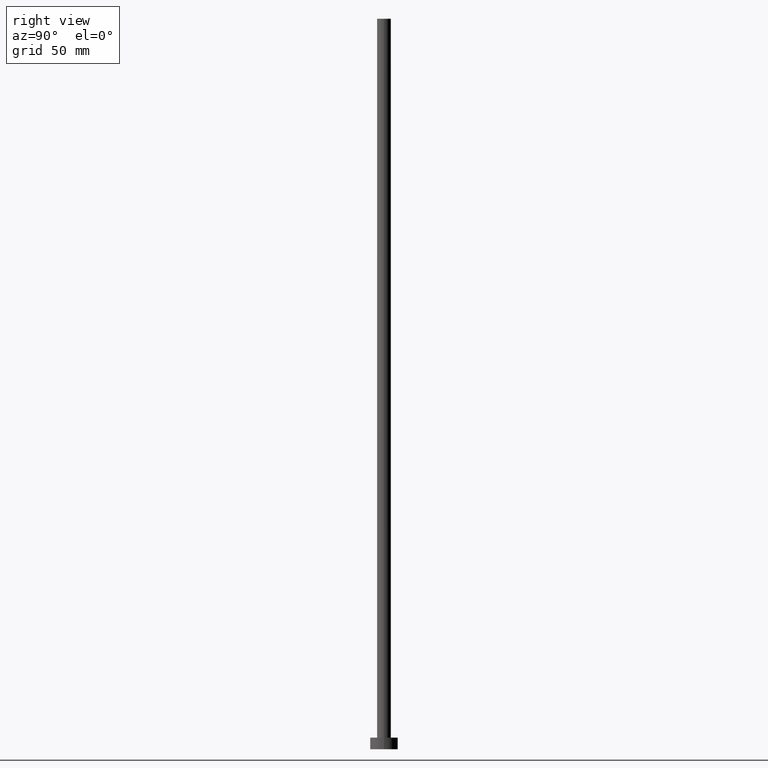
[diagram: clean part render]
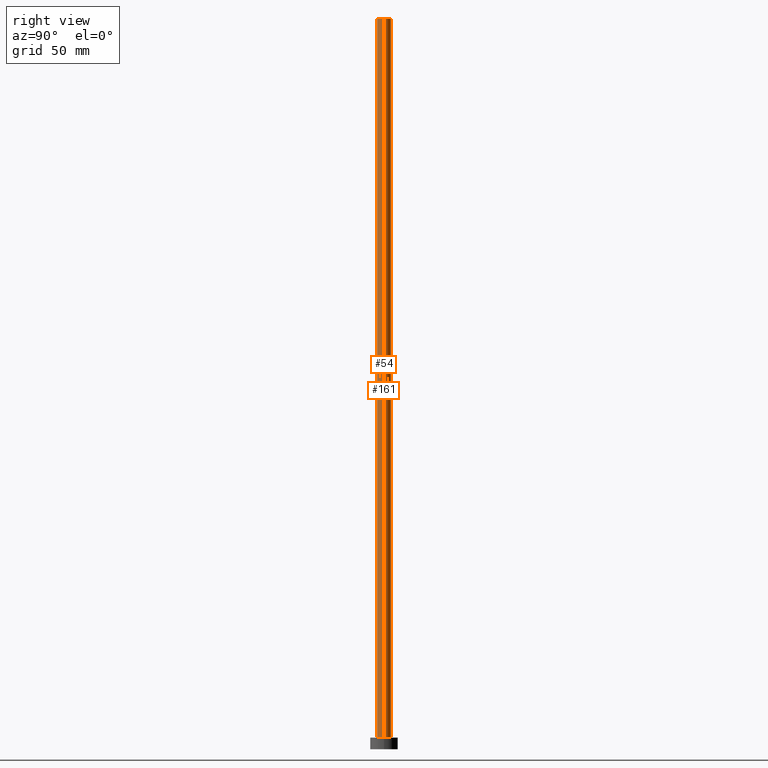
[diagram: same view with one multi-face feature highlighted, each face labeled with its STEP entity id]
A machine part, right view. The highlighted faces form ONE feature: a constant-radius fillet chain: 2 tangent blend faces with common blend radius 3 mm. The faces share edges in the B-rep.
Their STEP definitions:
[1] entity #161 (Cylinder):
#8 = CIRCLE ( 'NONE', #176, 3.000000000000000444 ) ;
#23 = DIRECTION ( 'NONE',  ( 1.000000000000000000, 0.000000000000000000, 0.000000000000000000 ) ) ;
#26 = EDGE_CURVE ( 'NONE', #210, #33, #8, .T. ) ;
#29 = CARTESIAN_POINT ( 'NONE',  ( 3.000000000000000444, 3.673940397442060361E-16, 315.0000000000000000 ) ) ;
#33 = VERTEX_POINT ( 'NONE', #233 ) ;
#43 = CIRCLE ( 'NONE', #131, 3.000000000000000444 ) ;
#48 = VECTOR ( 'NONE', #57, 1000.000000000000000 ) ;
#51 = EDGE_LOOP ( 'NONE', ( #65, #189, #110, #148 ) ) ;
#57 = DIRECTION ( 'NONE',  ( -0.000000000000000000, -0.000000000000000000, -1.000000000000000000 ) ) ;
#65 = ORIENTED_EDGE ( 'NONE', *, *, #154, .F. ) ;
#85 = DIRECTION ( 'NONE',  ( 0.000000000000000000, 0.000000000000000000, 1.000000000000000000 ) ) ;
#95 = CARTESIAN_POINT ( 'NONE',  ( 0.000000000000000000, 0.000000000000000000, 315.0000000000000000 ) ) ;
#96 = CYLINDRICAL_SURFACE ( 'NONE', #104, 3.000000000000000444 ) ;
#97 = DIRECTION ( 'NONE',  ( -0.000000000000000000, -0.000000000000000000, -1.000000000000000000 ) ) ;
#104 = AXIS2_PLACEMENT_3D ( 'NONE', #177, #135, #136 ) ;
#106 = VERTEX_POINT ( 'NONE', #29 ) ;
#110 = ORIENTED_EDGE ( 'NONE', *, *, #26, .T. ) ;
#124 = EDGE_CURVE ( 'NONE', #164, #33, #158, .T. ) ;
#131 = AXIS2_PLACEMENT_3D ( 'NONE', #95, #197, #23 ) ;
#135 = DIRECTION ( 'NONE',  ( -0.000000000000000000, -0.000000000000000000, -1.000000000000000000 ) ) ;
#136 = DIRECTION ( 'NONE',  ( -1.000000000000000000, 0.000000000000000000, 0.000000000000000000 ) ) ;
#148 = ORIENTED_EDGE ( 'NONE', *, *, #124, .F. ) ;
#154 = EDGE_CURVE ( 'NONE', #106, #164, #43, .T. ) ;
#157 = LINE ( 'NONE', #236, #193 ) ;
#158 = LINE ( 'NONE', #234, #48 ) ;
#161 = ADVANCED_FACE ( 'NONE', ( #194 ), #96, .T. ) ;
#164 = VERTEX_POINT ( 'NONE', #218 ) ;
#176 = AXIS2_PLACEMENT_3D ( 'NONE', #209, #85, #191 ) ;
#177 = CARTESIAN_POINT ( 'NONE',  ( 0.000000000000000000, 0.000000000000000000, 315.0000000000000000 ) ) ;
#189 = ORIENTED_EDGE ( 'NONE', *, *, #238, .T. ) ;
#191 = DIRECTION ( 'NONE',  ( 1.000000000000000000, 0.000000000000000000, 0.000000000000000000 ) ) ;
#193 = VECTOR ( 'NONE', #97, 1000.000000000000000 ) ;
#194 = FACE_OUTER_BOUND ( 'NONE', #51, .T. ) ;
#195 = CARTESIAN_POINT ( 'NONE',  ( 3.000000000000000444, 3.673940397442060361E-16, 5.000000000000000000 ) ) ;
#197 = DIRECTION ( 'NONE',  ( 0.000000000000000000, 0.000000000000000000, 1.000000000000000000 ) ) ;
#209 = CARTESIAN_POINT ( 'NONE',  ( 0.000000000000000000, 0.000000000000000000, 5.000000000000000000 ) ) ;
#210 = VERTEX_POINT ( 'NONE', #195 ) ;
#218 = CARTESIAN_POINT ( 'NONE',  ( -3.000000000000000444, 0.000000000000000000, 315.0000000000000000 ) ) ;
#233 = CARTESIAN_POINT ( 'NONE',  ( -3.000000000000000444, 0.000000000000000000, 5.000000000000000000 ) ) ;
#234 = CARTESIAN_POINT ( 'NONE',  ( -3.000000000000000444, 0.000000000000000000, 315.0000000000000000 ) ) ;
#236 = CARTESIAN_POINT ( 'NONE',  ( 3.000000000000000444, 3.673940397442060361E-16, 315.0000000000000000 ) ) ;
#238 = EDGE_CURVE ( 'NONE', #106, #210, #157, .T. ) ;
[2] entity #54 (Cylinder):
#4 = DIRECTION ( 'NONE',  ( 0.000000000000000000, 0.000000000000000000, 1.000000000000000000 ) ) ;
#9 = AXIS2_PLACEMENT_3D ( 'NONE', #21, #4, #111 ) ;
#13 = ORIENTED_EDGE ( 'NONE', *, *, #124, .T. ) ;
#17 = ORIENTED_EDGE ( 'NONE', *, *, #238, .F. ) ;
#21 = CARTESIAN_POINT ( 'NONE',  ( 0.000000000000000000, 0.000000000000000000, 5.000000000000000000 ) ) ;
#29 = CARTESIAN_POINT ( 'NONE',  ( 3.000000000000000444, 3.673940397442060361E-16, 315.0000000000000000 ) ) ;
#33 = VERTEX_POINT ( 'NONE', #233 ) ;
#36 = DIRECTION ( 'NONE',  ( 1.000000000000000000, 0.000000000000000000, 0.000000000000000000 ) ) ;
#48 = VECTOR ( 'NONE', #57, 1000.000000000000000 ) ;
#54 = ADVANCED_FACE ( 'NONE', ( #165 ), #248, .T. ) ;
#57 = DIRECTION ( 'NONE',  ( -0.000000000000000000, -0.000000000000000000, -1.000000000000000000 ) ) ;
#71 = EDGE_LOOP ( 'NONE', ( #17, #86, #13, #147 ) ) ;
#72 = DIRECTION ( 'NONE',  ( -1.000000000000000000, 0.000000000000000000, 0.000000000000000000 ) ) ;
#75 = CARTESIAN_POINT ( 'NONE',  ( 0.000000000000000000, 0.000000000000000000, 315.0000000000000000 ) ) ;
#86 = ORIENTED_EDGE ( 'NONE', *, *, #179, .F. ) ;
#97 = DIRECTION ( 'NONE',  ( -0.000000000000000000, -0.000000000000000000, -1.000000000000000000 ) ) ;
#106 = VERTEX_POINT ( 'NONE', #29 ) ;
#111 = DIRECTION ( 'NONE',  ( 1.000000000000000000, 0.000000000000000000, 0.000000000000000000 ) ) ;
#124 = EDGE_CURVE ( 'NONE', #164, #33, #158, .T. ) ;
#128 = CARTESIAN_POINT ( 'NONE',  ( 0.000000000000000000, 0.000000000000000000, 315.0000000000000000 ) ) ;
#147 = ORIENTED_EDGE ( 'NONE', *, *, #247, .T. ) ;
#157 = LINE ( 'NONE', #236, #193 ) ;
#158 = LINE ( 'NONE', #234, #48 ) ;
#160 = AXIS2_PLACEMENT_3D ( 'NONE', #128, #253, #72 ) ;
#164 = VERTEX_POINT ( 'NONE', #218 ) ;
#165 = FACE_OUTER_BOUND ( 'NONE', #71, .T. ) ;
#175 = DIRECTION ( 'NONE',  ( 0.000000000000000000, 0.000000000000000000, 1.000000000000000000 ) ) ;
#179 = EDGE_CURVE ( 'NONE', #164, #106, #231, .T. ) ;
#193 = VECTOR ( 'NONE', #97, 1000.000000000000000 ) ;
#195 = CARTESIAN_POINT ( 'NONE',  ( 3.000000000000000444, 3.673940397442060361E-16, 5.000000000000000000 ) ) ;
#203 = CIRCLE ( 'NONE', #9, 3.000000000000000444 ) ;
#210 = VERTEX_POINT ( 'NONE', #195 ) ;
#215 = AXIS2_PLACEMENT_3D ( 'NONE', #75, #175, #36 ) ;
#218 = CARTESIAN_POINT ( 'NONE',  ( -3.000000000000000444, 0.000000000000000000, 315.0000000000000000 ) ) ;
#231 = CIRCLE ( 'NONE', #215, 3.000000000000000444 ) ;
#233 = CARTESIAN_POINT ( 'NONE',  ( -3.000000000000000444, 0.000000000000000000, 5.000000000000000000 ) ) ;
#234 = CARTESIAN_POINT ( 'NONE',  ( -3.000000000000000444, 0.000000000000000000, 315.0000000000000000 ) ) ;
#236 = CARTESIAN_POINT ( 'NONE',  ( 3.000000000000000444, 3.673940397442060361E-16, 315.0000000000000000 ) ) ;
#238 = EDGE_CURVE ( 'NONE', #106, #210, #157, .T. ) ;
#247 = EDGE_CURVE ( 'NONE', #33, #210, #203, .T. ) ;
#248 = CYLINDRICAL_SURFACE ( 'NONE', #160, 3.000000000000000444 ) ;
#253 = DIRECTION ( 'NONE',  ( -0.000000000000000000, -0.000000000000000000, -1.000000000000000000 ) ) ;